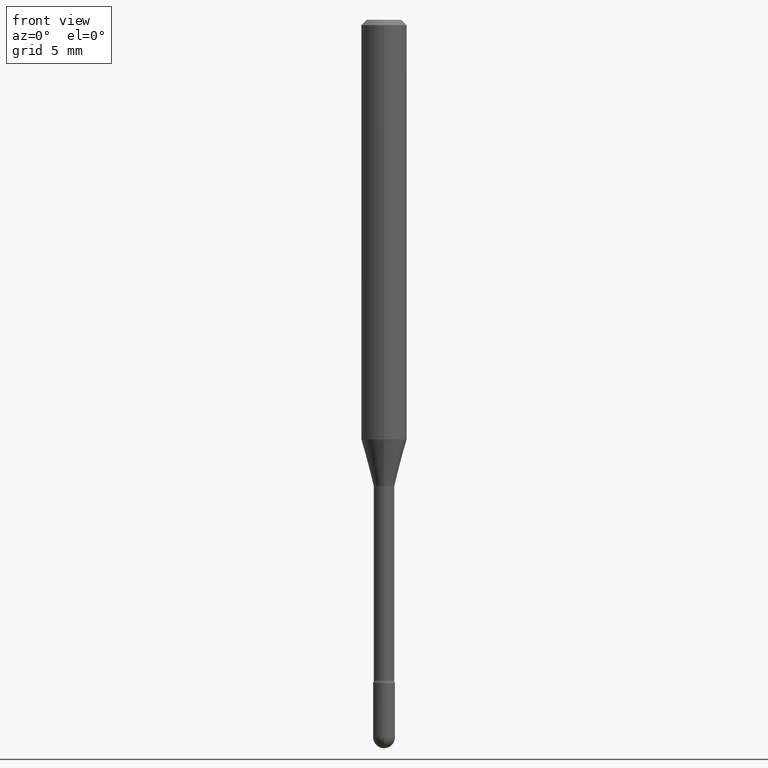
[diagram: clean part render]
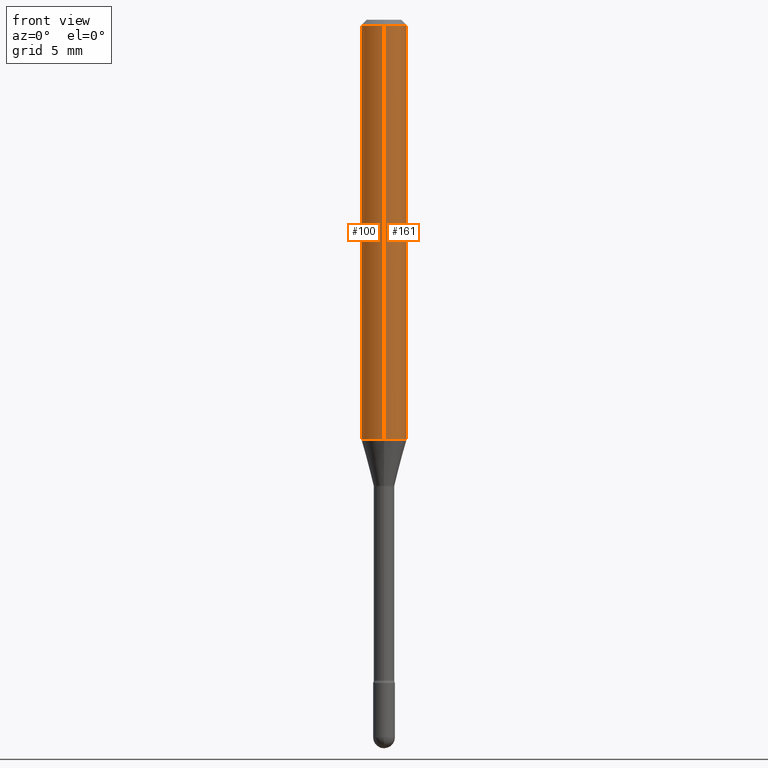
[diagram: same view with one multi-face feature highlighted, each face labeled with its STEP entity id]
A machine part, front view. The highlighted faces form ONE feature: a constant-radius fillet chain: 2 tangent blend faces with common blend radius 1.5875 mm. The faces share edges in the B-rep.
Their STEP definitions:
[1] entity #161 (Cylinder):
#5 = VECTOR ( 'NONE', #502, 39.37007874015748143 ) ;
#15 = EDGE_LOOP ( 'NONE', ( #388, #277, #153, #135 ) ) ;
#71 = CIRCLE ( 'NONE', #288, 0.06250000000000000000 ) ;
#77 = VECTOR ( 'NONE', #445, 39.37007874015748143 ) ;
#88 = VERTEX_POINT ( 'NONE', #528 ) ;
#96 = CARTESIAN_POINT ( 'NONE',  ( -1.169113584055446105E-44, 1.669184350826100908E-30, 4.780733988912460139E-16 ) ) ;
#104 = VERTEX_POINT ( 'NONE', #129 ) ;
#129 = CARTESIAN_POINT ( 'NONE',  ( 4.440892098500904235E-16, 0.06249999999999594075, -1.151990657300388188 ) ) ;
#135 = ORIENTED_EDGE ( 'NONE', *, *, #168, .F. ) ;
#144 = VERTEX_POINT ( 'NONE', #536 ) ;
#153 = ORIENTED_EDGE ( 'NONE', *, *, #513, .F. ) ;
#161 = ADVANCED_FACE ( 'NONE', ( #175 ), #397, .T. ) ;
#168 = EDGE_CURVE ( 'NONE', #322, #144, #530, .T. ) ;
#175 = FACE_OUTER_BOUND ( 'NONE', #15, .T. ) ;
#182 = CARTESIAN_POINT ( 'NONE',  ( -4.364351673553916201E-16, -0.06250000000000000000, 6.962920164864222561E-16 ) ) ;
#185 = CARTESIAN_POINT ( 'NONE',  ( -4.364351673553636648E-16, -0.06250000000000405231, -1.151990657300387522 ) ) ;
#198 = EDGE_CURVE ( 'NONE', #322, #104, #243, .T. ) ;
#199 = DIRECTION ( 'NONE',  ( -2.445457254493661418E-29, 3.491497881522819481E-15, 1.000000000000000000 ) ) ;
#204 = CARTESIAN_POINT ( 'NONE',  ( 3.668185881740512253E-31, -5.237246822284258483E-17, -0.01500000000000008271 ) ) ;
#243 = CIRCLE ( 'NONE', #553, 0.06250000000000000000 ) ;
#263 = DIRECTION ( 'NONE',  ( -6.982962677686265922E-15, -1.000000000000000000, 3.491497881522818692E-15 ) ) ;
#277 = ORIENTED_EDGE ( 'NONE', *, *, #321, .T. ) ;
#288 = AXIS2_PLACEMENT_3D ( 'NONE', #204, #199, #554 ) ;
#321 = EDGE_CURVE ( 'NONE', #104, #88, #363, .T. ) ;
#322 = VERTEX_POINT ( 'NONE', #185 ) ;
#353 = DIRECTION ( 'NONE',  ( -2.445457254493661418E-29, 3.491497881522819481E-15, 1.000000000000000000 ) ) ;
#355 = DIRECTION ( 'NONE',  ( -6.982962677686265922E-15, -1.000000000000000000, 4.370956789862821150E-15 ) ) ;
#363 = LINE ( 'NONE', #411, #5 ) ;
#388 = ORIENTED_EDGE ( 'NONE', *, *, #198, .T. ) ;
#397 = CYLINDRICAL_SURFACE ( 'NONE', #420, 0.06250000000000000000 ) ;
#409 = CARTESIAN_POINT ( 'NONE',  ( 2.817143910004154640E-29, -4.022172939498384553E-15, -1.151990657300387744 ) ) ;
#411 = CARTESIAN_POINT ( 'NONE',  ( 4.440892098500625669E-16, 0.06250000000000000000, 2.598547812960698703E-16 ) ) ;
#420 = AXIS2_PLACEMENT_3D ( 'NONE', #96, #353, #263 ) ;
#445 = DIRECTION ( 'NONE',  ( -2.445457254493661698E-29, 3.491497881522819086E-15, 1.000000000000000000 ) ) ;
#487 = DIRECTION ( 'NONE',  ( -2.445457254493661418E-29, 3.491497881522819481E-15, 1.000000000000000000 ) ) ;
#502 = DIRECTION ( 'NONE',  ( -2.445457254493661698E-29, 3.491497881522819086E-15, 1.000000000000000000 ) ) ;
#513 = EDGE_CURVE ( 'NONE', #144, #88, #71, .T. ) ;
#528 = CARTESIAN_POINT ( 'NONE',  ( 4.440892098500909166E-16, 0.06249999999999995143, -0.01500000000000030129 ) ) ;
#530 = LINE ( 'NONE', #182, #77 ) ;
#536 = CARTESIAN_POINT ( 'NONE',  ( -4.364351673553912750E-16, -0.06250000000000005551, -0.01499999999999986587 ) ) ;
#553 = AXIS2_PLACEMENT_3D ( 'NONE', #409, #487, #355 ) ;
#554 = DIRECTION ( 'NONE',  ( -6.982962677686265922E-15, -1.000000000000000000, 3.483106191921935554E-15 ) ) ;
[2] entity #100 (Cylinder):
#5 = VECTOR ( 'NONE', #502, 39.37007874015748143 ) ;
#10 = DIRECTION ( 'NONE',  ( -6.982962677686265922E-15, -1.000000000000000000, 3.491497881522818692E-15 ) ) ;
#20 = ORIENTED_EDGE ( 'NONE', *, *, #321, .F. ) ;
#26 = EDGE_CURVE ( 'NONE', #104, #322, #432, .T. ) ;
#41 = ORIENTED_EDGE ( 'NONE', *, *, #399, .F. ) ;
#46 = CYLINDRICAL_SURFACE ( 'NONE', #262, 0.06250000000000000000 ) ;
#67 = ORIENTED_EDGE ( 'NONE', *, *, #26, .T. ) ;
#75 = DIRECTION ( 'NONE',  ( -2.445457254493661418E-29, 3.491497881522819481E-15, 1.000000000000000000 ) ) ;
#77 = VECTOR ( 'NONE', #445, 39.37007874015748143 ) ;
#88 = VERTEX_POINT ( 'NONE', #528 ) ;
#100 = ADVANCED_FACE ( 'NONE', ( #318 ), #46, .T. ) ;
#104 = VERTEX_POINT ( 'NONE', #129 ) ;
#128 = DIRECTION ( 'NONE',  ( -6.982962677686265922E-15, -1.000000000000000000, 4.370956789862821150E-15 ) ) ;
#129 = CARTESIAN_POINT ( 'NONE',  ( 4.440892098500904235E-16, 0.06249999999999594075, -1.151990657300388188 ) ) ;
#144 = VERTEX_POINT ( 'NONE', #536 ) ;
#168 = EDGE_CURVE ( 'NONE', #322, #144, #530, .T. ) ;
#182 = CARTESIAN_POINT ( 'NONE',  ( -4.364351673553916201E-16, -0.06250000000000000000, 6.962920164864222561E-16 ) ) ;
#183 = CIRCLE ( 'NONE', #510, 0.06250000000000000000 ) ;
#185 = CARTESIAN_POINT ( 'NONE',  ( -4.364351673553636648E-16, -0.06250000000000405231, -1.151990657300387522 ) ) ;
#258 = AXIS2_PLACEMENT_3D ( 'NONE', #431, #427, #128 ) ;
#262 = AXIS2_PLACEMENT_3D ( 'NONE', #534, #404, #10 ) ;
#292 = CARTESIAN_POINT ( 'NONE',  ( 3.668185881740512253E-31, -5.237246822284258483E-17, -0.01500000000000008271 ) ) ;
#318 = FACE_OUTER_BOUND ( 'NONE', #514, .T. ) ;
#321 = EDGE_CURVE ( 'NONE', #104, #88, #363, .T. ) ;
#322 = VERTEX_POINT ( 'NONE', #185 ) ;
#363 = LINE ( 'NONE', #411, #5 ) ;
#372 = ORIENTED_EDGE ( 'NONE', *, *, #168, .T. ) ;
#399 = EDGE_CURVE ( 'NONE', #88, #144, #183, .T. ) ;
#404 = DIRECTION ( 'NONE',  ( -2.445457254493661418E-29, 3.491497881522819481E-15, 1.000000000000000000 ) ) ;
#411 = CARTESIAN_POINT ( 'NONE',  ( 4.440892098500625669E-16, 0.06250000000000000000, 2.598547812960698703E-16 ) ) ;
#427 = DIRECTION ( 'NONE',  ( -2.445457254493661418E-29, 3.491497881522819481E-15, 1.000000000000000000 ) ) ;
#431 = CARTESIAN_POINT ( 'NONE',  ( 2.817143910004154640E-29, -4.022172939498384553E-15, -1.151990657300387744 ) ) ;
#432 = CIRCLE ( 'NONE', #258, 0.06250000000000000000 ) ;
#445 = DIRECTION ( 'NONE',  ( -2.445457254493661698E-29, 3.491497881522819086E-15, 1.000000000000000000 ) ) ;
#478 = DIRECTION ( 'NONE',  ( -6.982962677686265922E-15, -1.000000000000000000, 3.483106191921935554E-15 ) ) ;
#502 = DIRECTION ( 'NONE',  ( -2.445457254493661698E-29, 3.491497881522819086E-15, 1.000000000000000000 ) ) ;
#510 = AXIS2_PLACEMENT_3D ( 'NONE', #292, #75, #478 ) ;
#514 = EDGE_LOOP ( 'NONE', ( #20, #67, #372, #41 ) ) ;
#528 = CARTESIAN_POINT ( 'NONE',  ( 4.440892098500909166E-16, 0.06249999999999995143, -0.01500000000000030129 ) ) ;
#530 = LINE ( 'NONE', #182, #77 ) ;
#534 = CARTESIAN_POINT ( 'NONE',  ( -1.169113584055446105E-44, 1.669184350826100908E-30, 4.780733988912460139E-16 ) ) ;
#536 = CARTESIAN_POINT ( 'NONE',  ( -4.364351673553912750E-16, -0.06250000000000005551, -0.01499999999999986587 ) ) ;